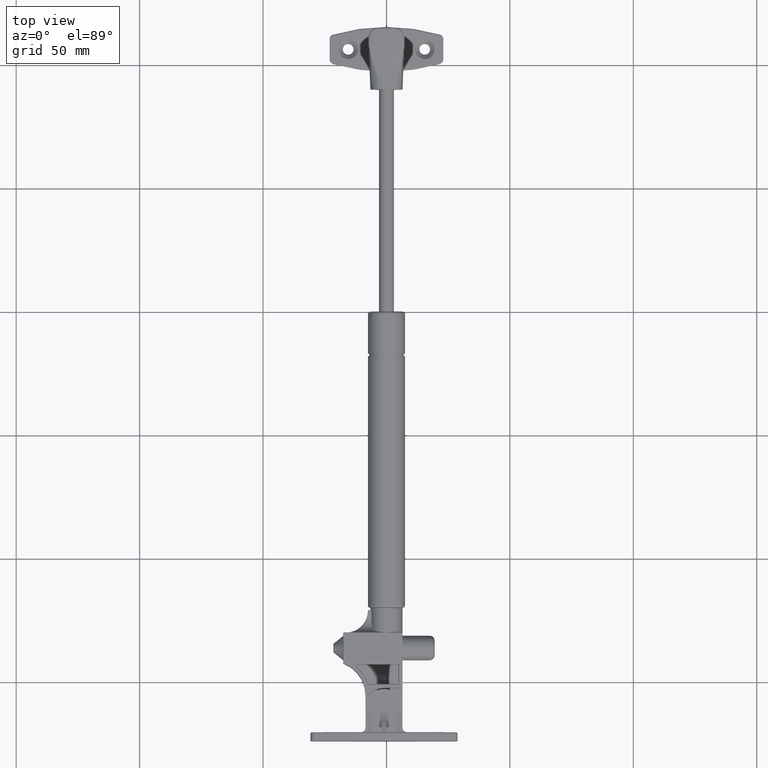
[diagram: clean part render]
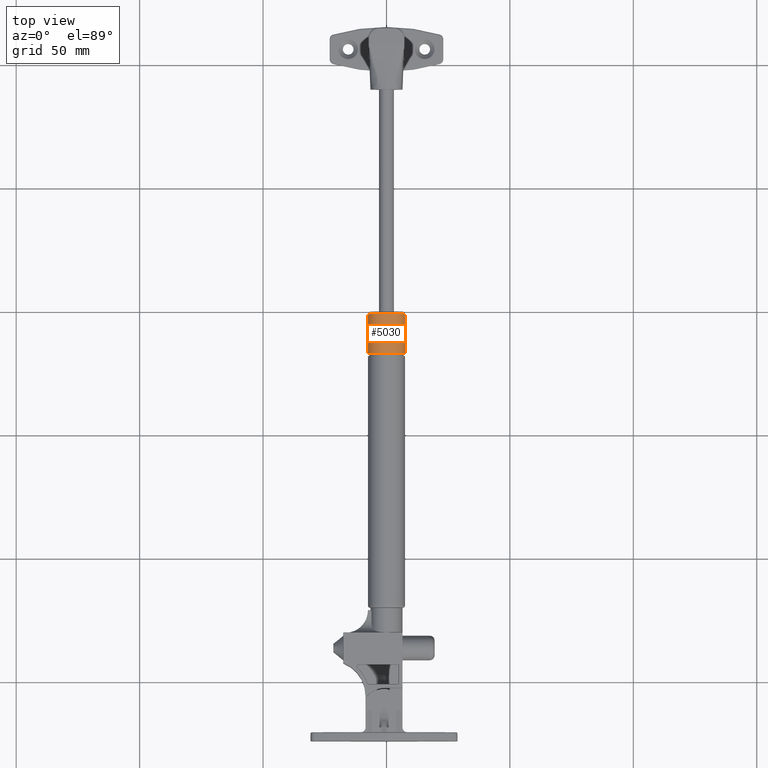
[diagram: same view with one face highlighted and labeled with its STEP entity id]
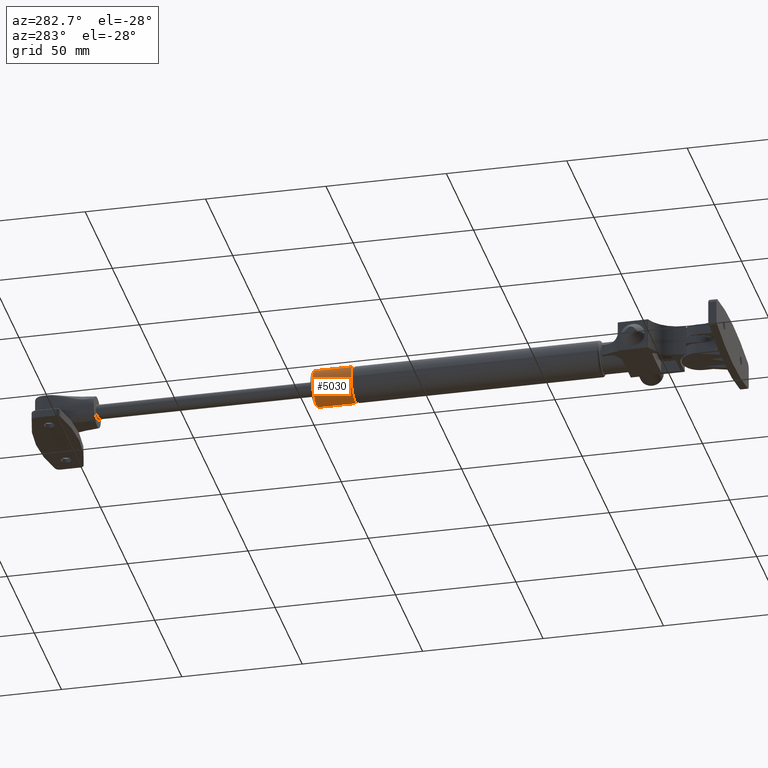
[diagram: same view with one face highlighted and labeled with its STEP entity id]
A machine part, top view. The second image highlights one B-rep face of the part: STEP entity #5030.
A second angle (auxiliary view) of the same face is appended — the face is thin or edge-on in the first view.
In plain terms, the highlighted cylindrical surface (bore or boss wall) has radius 7.5 mm, axis along (-0, -1, 0).
Its self-contained STEP definition (entity closure, byte-faithful):
#918=CYLINDRICAL_SURFACE('',#5500,7.5);
#1127=FACE_BOUND('',#1650,.T.);
#1259=FACE_OUTER_BOUND('',#1649,.T.);
#1649=EDGE_LOOP('',(#3871));
#1650=EDGE_LOOP('',(#3872));
#2028=CIRCLE('',#5497,7.5);
#2030=CIRCLE('',#5501,7.5);
#2390=VERTEX_POINT('',#7854);
#2392=VERTEX_POINT('',#7860);
#2916=EDGE_CURVE('',#2390,#2390,#2028,.T.);
#2918=EDGE_CURVE('',#2392,#2392,#2030,.T.);
#3871=ORIENTED_EDGE('',*,*,#2918,.T.);
#3872=ORIENTED_EDGE('',*,*,#2916,.F.);
#5030=ADVANCED_FACE('',(#1259,#1127),#918,.T.);
#5497=AXIS2_PLACEMENT_3D('',#7855,#6428,#6429);
#5500=AXIS2_PLACEMENT_3D('',#7859,#6434,#6435);
#5501=AXIS2_PLACEMENT_3D('',#7861,#6436,#6437);
#6428=DIRECTION('center_axis',(-1.85227828371037E-16,1.,0.));
#6429=DIRECTION('ref_axis',(-1.,-1.85037170770859E-16,1.22464679914735E-16));
#6434=DIRECTION('center_axis',(1.85227828371037E-16,-1.,0.));
#6435=DIRECTION('ref_axis',(1.,1.85227828371037E-16,0.));
#6436=DIRECTION('center_axis',(0.,1.,0.));
#6437=DIRECTION('ref_axis',(1.,1.85227828371037E-16,0.));
#7854=CARTESIAN_POINT('',(7.5,-0.999999999999995,-1.83697019872103E-15));
#7855=CARTESIAN_POINT('Origin',(1.85227828371036E-16,-0.999999999999996,
0.));
#7859=CARTESIAN_POINT('Origin',(1.11136697022622E-14,-60.,0.));
#7860=CARTESIAN_POINT('',(7.5,-17.,0.));
#7861=CARTESIAN_POINT('Origin',(3.14887308230763E-15,-17.,0.));